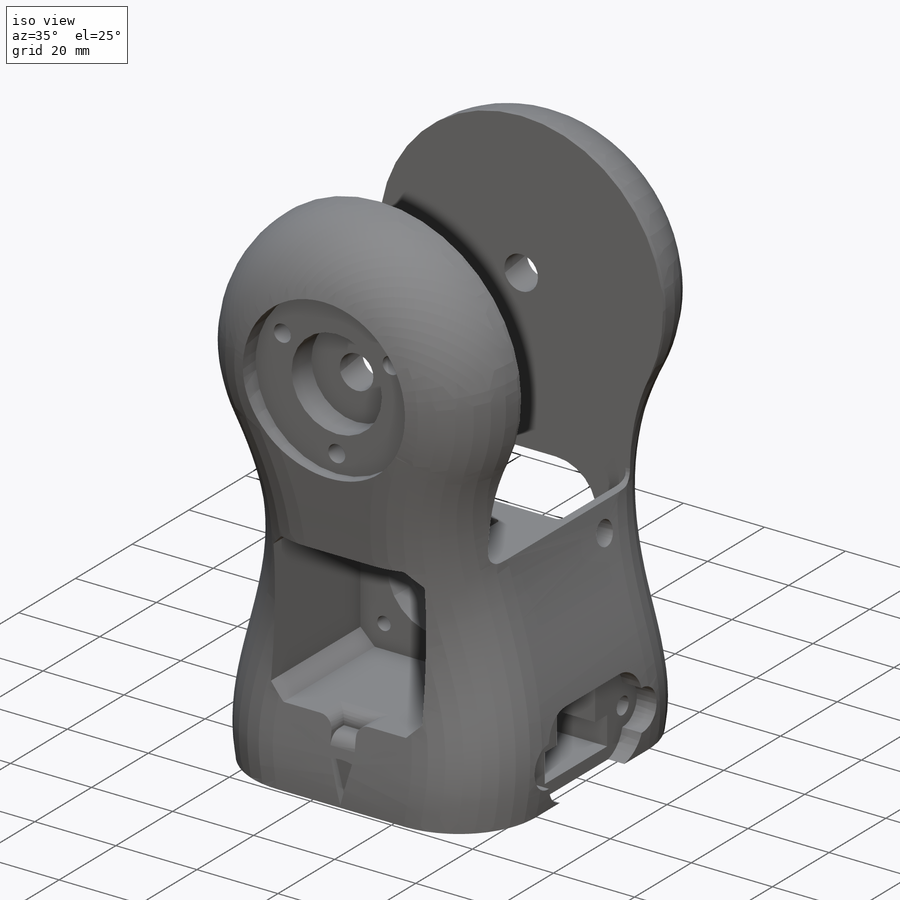
[diagram: iso view]
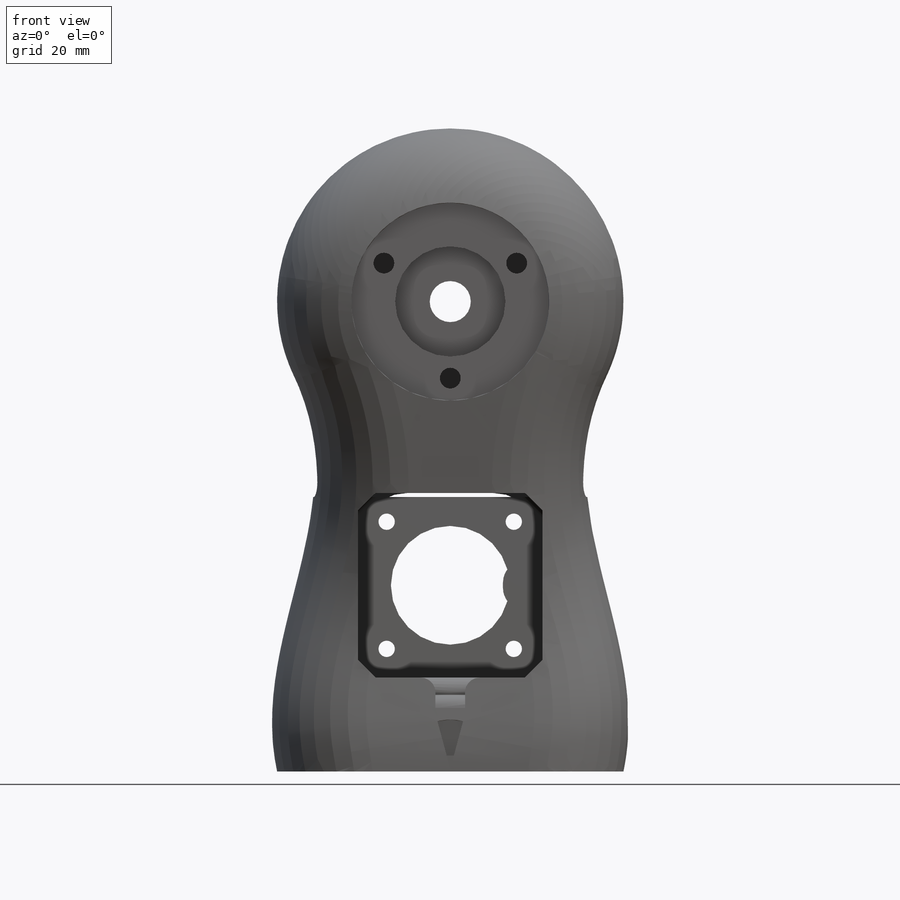
[diagram: front view]
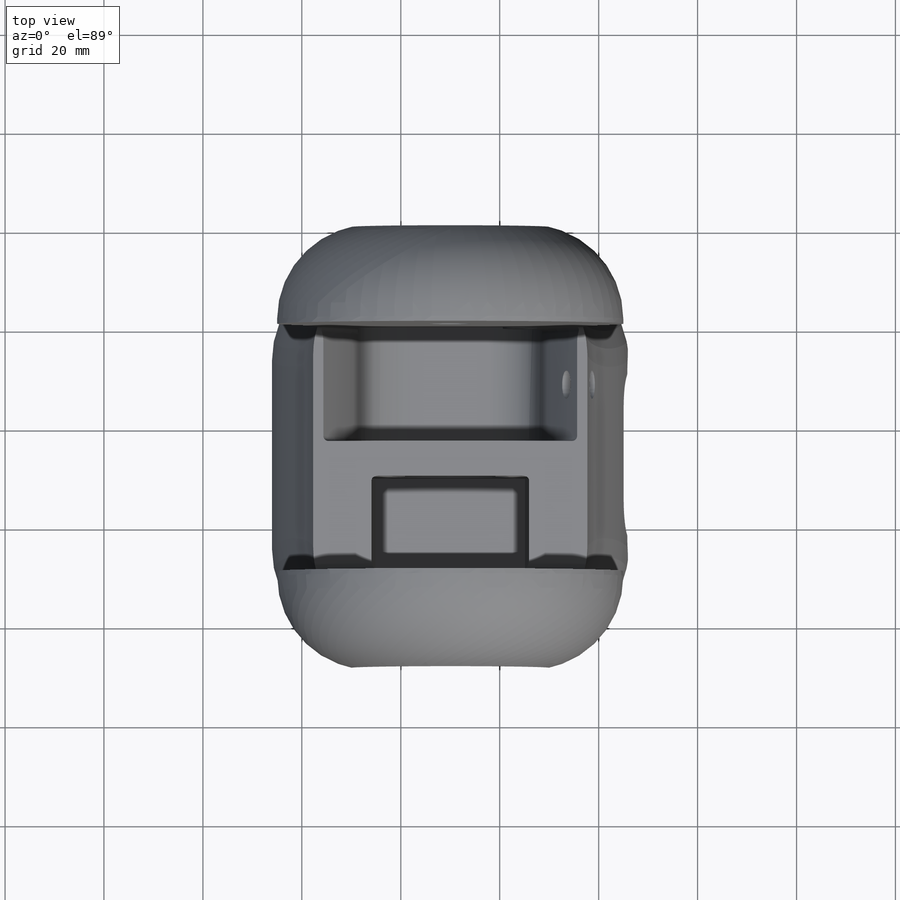
[diagram: top view]
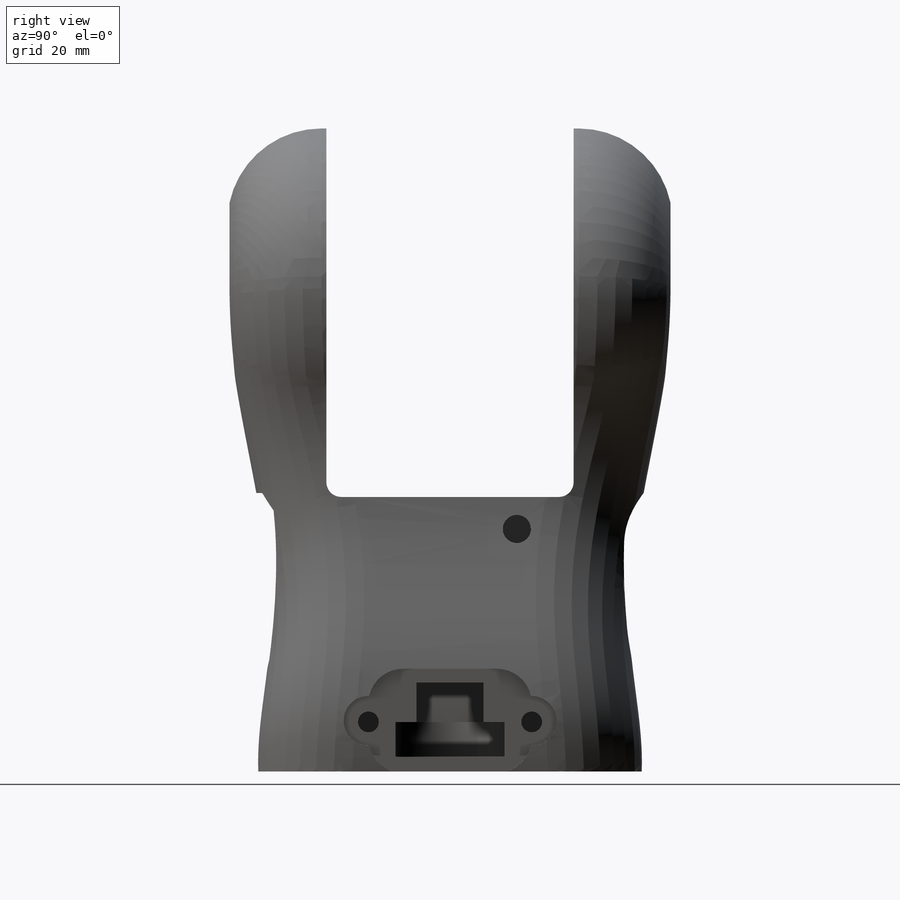
[diagram: right view]
SOLIDWORKS PART (.sldprt)
format: sldprt  version: not decoded by parser v0  size: 1,452,544 bytes
history: native  units: mm
features: sketch x38, cut_extrude x28, fillet x12, plane x11, extrude x4, mirror x2, material x1 (+9 scaffold rows collapsed)
feature tree (105):
  scaffold x9  (default folders/planes/origin — collapsed)
  material  "Material <sin especificar>"
  plane  "Alzado"
  plane  "Planta"
  plane  "Vista lateral"
  sketch  "Croquis1"  dims[c1.D7=70.0mm c1.D9=8.3mm c1.D1=70.0mm c1.D2=15.0mm c1.D3=22.0mm c1.D4=15.0mm c1.D5=15.0mm c1.D6=22.0mm c1.D8=130.0mm c2.D9=~13.328868mm c2.D4=14.0mm c2.D5=14.0mm]
  extrude  "Saliente-Extruir1"  Depth=90mm
  sketch  "Croquis2"  dims[c1.D1=70.0mm c1.D2=4.0mm c1.D3=3.0mm c1.D4=8.0mm c2.D3=3.0mm c2.D4=20.0mm c2.D5=7.0mm c2.D6=19.0mm c3.D3=77.5mm c3.D6=6.25mm c3.D7=6.25mm c3.D8=8.5mm c3.D9=8.5mm c3.D10=6.25mm c3.D11=19.0mm]
  sketch  "Croquis3"  dims[D1=8.3mm]
  cut_extrude  "Cortar-Extruir2"  Depth=5mm
  sketch  "Croquis16"  dims[c1.D1=3.0mm c1.D2=22.0mm c1.D3=19.0mm c1.D4=90.0mm c2.D2=8.0mm c2.D3=13.5mm]
  cut_extrude  "Cortar-Extruir20"  Depth=61mm
  cut_extrude  "Cortar-Extruir4"  [1 undecoded]
  sketch  "Croquis1<3>"  dims[D1=100.0mm]
  cut_extrude  "Cortar-Extruir5"  [1 undecoded]
  sketch  "Croquis2<4>"  dims[D1=100.0mm]
  sketch  "Croquis5"  dims[D1=19.0mm D2=37.3mm D3=16.68mm D4=5.0mm]
  cut_extrude  "Cortar-Extruir6"  Depth=40mm
  sketch  "Croquis8"  dims[D4=3.3mm D1=25.7mm D2=5.8mm D3=5.8mm]
  cut_extrude  "Cortar-Extruir7"  Depth=55mm
  sketch  "Croquis9"  dims[c1.D1=37.3mm c1.D2=5.8mm c1.D3=~6.583666mm c2.D2=5.8mm c2.D3=5.8mm]
  cut_extrude  "Cortar-Extruir8"  Depth=43mm
  sketch  "Croquis10"  dims[D1=23.0mm]
  cut_extrude  "Cortar-Extruir9"  Depth=43mm
  sketch  "Croquis11"  dims[D1=6.0mm]
  cut_extrude  "Cortar-Extruir10"  Depth=3mm
  sketch  "Croquis12"  dims[D1=24.0mm]
  cut_extrude  "Cortar-Extruir11"  Depth=10mm
  sketch  "Croquis13"  dims[D1=22.3mm]
  cut_extrude  "Cortar-Extruir12"  Depth=12mm
  sketch  "Croquis14"  dims[D1=22.3mm]
  cut_extrude  "Cortar-Extruir15"  Depth=150mm
  fillet  "Redondeo17"  Radius=10mm
  fillet  "Redondeo20"  Radius=19mm
  fillet  "Redondeo21"  Radius=19mm
  cut_extrude  "Cortar-Extruir16"  Depth=12mm
  sketch  "Croquis15"  dims[D1=4.0mm D2=6.0mm D3=3.0mm]
  cut_extrude  "Cortar-Extruir19"  Depth=3.5mm
  fillet  "Redondeo22"  Radius=3mm
  sketch  "Croquis17"  dims[D1=22.0mm]
  extrude  "Saliente-Extruir2"  Depth=7mm
  sketch  "Croquis18"  dims[D1=4.5mm]
  sketch  "Croquis19"  dims[D1=4.5mm D2=60.0mm]
  cut_extrude  "Cortar-Extruir23"  [1 undecoded]
  cut_extrude  "Cortar-Extruir25"  Depth=20mm
  plane  "Plano1"
  sketch  "Croquis21"
  sketch  "Croquis26"
  plane  "Plano3"
  plane  "Plano4"
  sketch  "Croquis27"  dims[c1.D3=7.0mm c1.D4=7.0mm c1.D5=10.0mm c1.D6=3.1mm c1.D1=21.0mm c1.D2=33.0mm c1.D7=10.25mm c2.D1=21.0mm]
  cut_extrude  "Cortar-Extruir31"  Depth=5mm
  sketch  "Croquis28"  dims[c1.D1=3.1mm c1.D2=4.2mm c2.D1=0.25mm]
  cut_extrude  "Cortar-Extruir32"  Depth=15mm
  sketch  "Croquis30"  dims[D1=7.0mm]
  cut_extrude  "Cortar-Extruir33"  [1 undecoded]
  fillet  "Redondeo27"  Radius=150mm
  fillet  "Redondeo28"  Radius=3mm
  fillet  "Redondeo29"  Radius=1mm
  sketch  "Croquis31"  dims[D1=8.5mm D2=5.3mm]
  cut_extrude  "Cortar-Extruir34"  Depth=2.4mm
  sketch  "Croquis35"  dims[c1.D1=8.65mm c1.D2=5.0mm c1.D3=5.0mm c2.D2=5.0mm c2.D3=10.0mm c3.D2=~10.130809mm c4.D2=~90.136103deg c5.D2=~10.130809mm c5.D3=~10.526294mm c6.D2=5.0mm c6.D3=10.0mm]
  extrude  "Saliente-Extruir5"  Depth=8mm
  sketch  "Croquis37"
  extrude  "Saliente-Extruir7"  Depth=6.65mm
  sketch  "Croquis41"
  sketch  "Croquis42"
  cut_extrude  "Cortar-Extruir37"  Depth=10mm
  sketch  "Croquis43"  dims[D1=5.6mm]
  sketch  "Croquis45"  dims[D2=5.6mm D1=2.4mm]
  cut_extrude  "Cortar-Extruir38"  Depth=9.68mm
  sketch  "Croquis46"
  cut_extrude  "Cortar-Extruir39"  [1 undecoded]
  sketch  "Croquis47"  dims[D1=3.2mm]
  cut_extrude  "Cortar-Extruir40"  [1 undecoded]
  fillet  "Redondeo32"  Radius=4.5mm
  fillet  "Redondeo33"  Radius=3.5mm
  fillet  "Redondeo34"  Radius=1mm
  sketch  "Croquis48"  dims[D1=5.3mm D2=15.2mm]
  plane  "Plano5"
  sketch  "Croquis49"  dims[D2=5.7mm D1=30.0mm D3=30.0mm]
  cut_extrude  "Cortar-Extruir41"  [1 undecoded]
  plane  "Plano7"
  plane  "Plano9"
  plane  "Plano10"
  sketch  "Croquis51"  dims[c1.D1=0.5mm c1.D2=10.0mm c1.D3=19.0mm c2.D3=15.0deg]
  cut_extrude  "Cortar-Extruir43"  Depth=2mm
  plane  "Plano11"
  sketch  "Croquis52"  dims[D1=40.0mm]
  cut_extrude  "Cortar-Extruir44"  Depth=5mm
  sketch  "Croquis53"  dims[c1.D1=4.2mm c1.D3=31.0mm c1.D4=4.2mm c1.D2=~12.337706mm c2.D2=120.0deg]
  cut_extrude  "Cortar-Extruir45"  Depth=12mm
  mirror  "Simetría1"
  sketch  "Croquis54"
  fillet  "Redondeo36"  Radius=1mm
  mirror  "Simetría2"
  fillet  "Redondeo37"  Radius=1mm
decode coverage: 68 of 84 modeling features carry decoded parameters
note: ~ marks probable driven/reference dimensions
note: 7 parameter values undecoded
summary: no parameter record found for 7 features
note: suppression state not decoded; provenance and decode notes live in map.json
